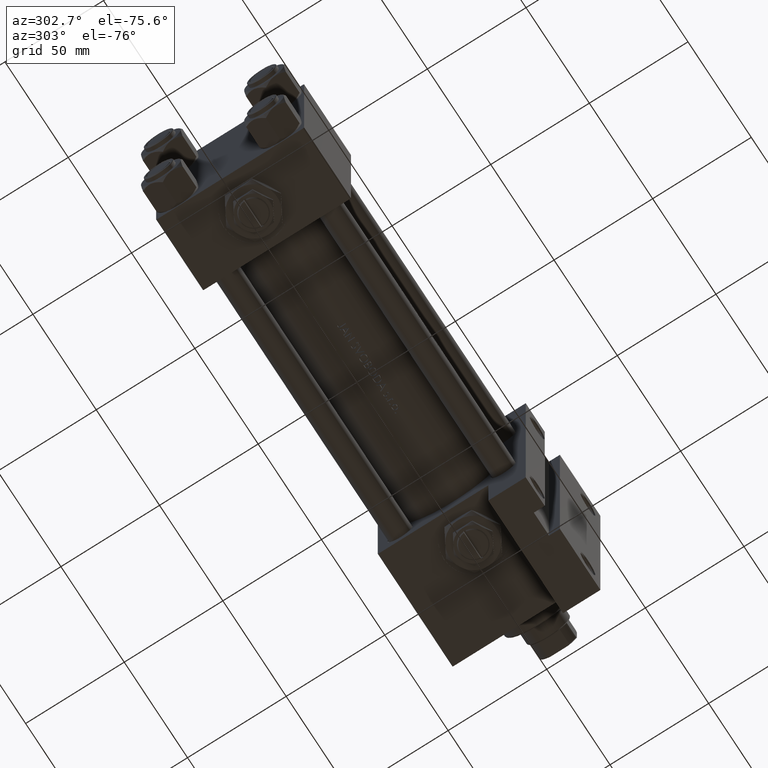
[diagram: clean part render]
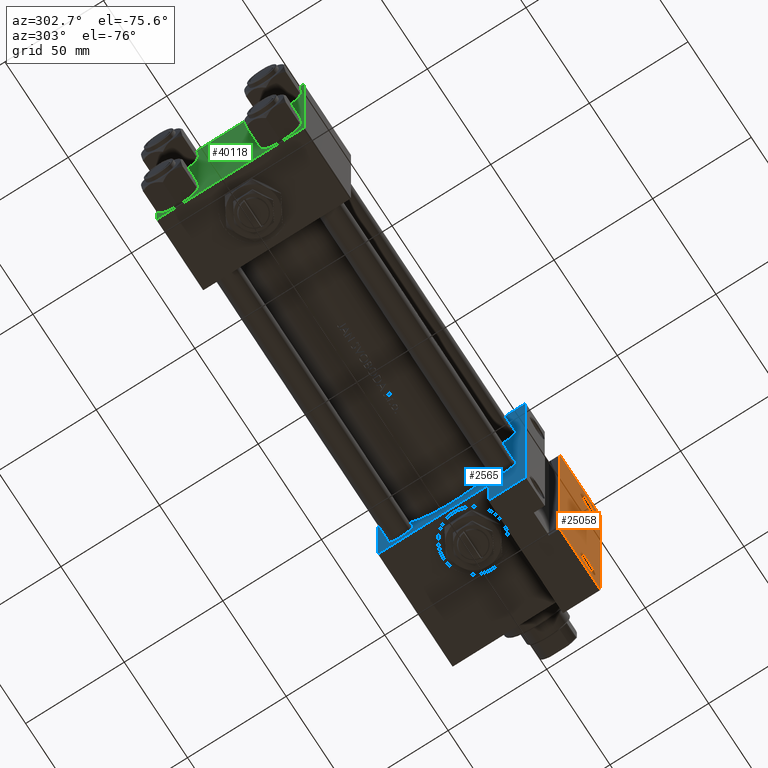
[diagram: same view with three faces highlighted in distinct colors, each labeled with its STEP entity id]
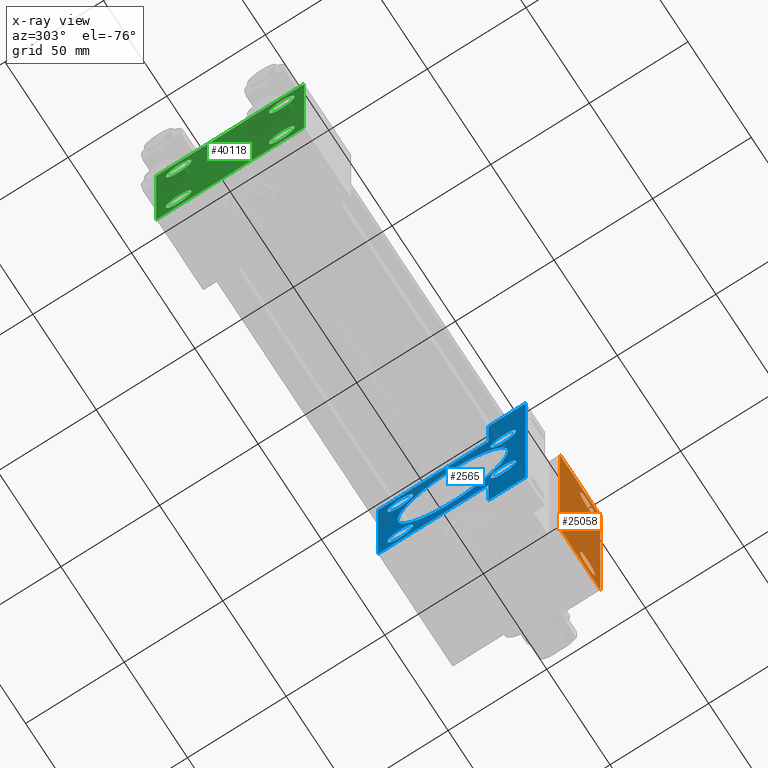
[diagram: x-ray of the same camera — body ghosted, the three highlighted faces saturated]
A machine part, auxiliary view with three faces highlighted in distinct colors.
The next image is the same camera in x-ray (body ghosted, the three faces saturated) — at least one of them is partly hidden behind the body in this view.
Their STEP definitions:

[orange] entity #25058 — the highlighted planar face has unit normal (0, -1, 0).
#278 = LINE ( 'NONE', #46759, #46553 ) ;
#504 = VECTOR ( 'NONE', #23861, 1000.000000000000000 ) ;
#605 = VERTEX_POINT ( 'NONE', #4541 ) ;
#720 = AXIS2_PLACEMENT_3D ( 'NONE', #1343, #44049, #16154 ) ;
#1170 = EDGE_CURVE ( 'NONE', #605, #16847, #38846, .T. ) ;
#1343 = CARTESIAN_POINT ( 'NONE',  ( 223.9999999999999716, 51.00000000000000000, -37.50000000000000000 ) ) ;
#1990 = EDGE_CURVE ( 'NONE', #40437, #18379, #25528, .T. ) ;
#2506 = CARTESIAN_POINT ( 'NONE',  ( 202.0000000000000568, -63.49999999999997158, -37.50000000000000000 ) ) ;
#4541 = CARTESIAN_POINT ( 'NONE',  ( 229.9994999999999266, 51.00000000000000000, -37.50000000000000000 ) ) ;
#4585 = AXIS2_PLACEMENT_3D ( 'NONE', #20412, #23269, #38582 ) ;
#4653 = CARTESIAN_POINT ( 'NONE',  ( 218.0005000000000166, 51.00000000000000000, -37.50000000000000000 ) ) ;
#4867 = CIRCLE ( 'NONE', #16056, 5.999499999999962974 ) ;
#6916 = EDGE_LOOP ( 'NONE', ( #47279, #37692 ) ) ;
#7075 = CARTESIAN_POINT ( 'NONE',  ( 234.0000000000000284, -63.50000000000001421, -37.50000000000000000 ) ) ;
#7153 = CIRCLE ( 'NONE', #720, 5.999499999999962974 ) ;
#7544 = CARTESIAN_POINT ( 'NONE',  ( 202.0000000000000568, 63.49999999999998579, -37.50000000000000000 ) ) ;
#7865 = VECTOR ( 'NONE', #25036, 1000.000000000000000 ) ;
#8537 = CARTESIAN_POINT ( 'NONE',  ( 202.0000000000000568, -63.49999999999997158, -37.50000000000000000 ) ) ;
#8660 = ORIENTED_EDGE ( 'NONE', *, *, #14014, .F. ) ;
#9529 = CARTESIAN_POINT ( 'NONE',  ( 223.9999999999999716, -51.00000000000000000, -37.50000000000000000 ) ) ;
#10968 = VERTEX_POINT ( 'NONE', #31069 ) ;
#13273 = DIRECTION ( 'NONE',  ( -0.000000000000000000, -0.000000000000000000, 1.000000000000000000 ) ) ;
#14014 = EDGE_CURVE ( 'NONE', #46991, #18379, #27634, .T. ) ;
#14170 = VERTEX_POINT ( 'NONE', #17946 ) ;
#14171 = CARTESIAN_POINT ( 'NONE',  ( 175.0000000000000284, -63.50000000000001421, -37.50000000000000000 ) ) ;
#14313 = FACE_OUTER_BOUND ( 'NONE', #35043, .T. ) ;
#14668 = LINE ( 'NONE', #45333, #7865 ) ;
#15862 = CIRCLE ( 'NONE', #49573, 5.999499999999962974 ) ;
#16056 = AXIS2_PLACEMENT_3D ( 'NONE', #26084, #30352, #25333 ) ;
#16154 = DIRECTION ( 'NONE',  ( -1.000000000000000000, 0.000000000000000000, 0.000000000000000000 ) ) ;
#16690 = CARTESIAN_POINT ( 'NONE',  ( 234.0000000000000568, 63.49999999999998579, -37.50000000000000000 ) ) ;
#16847 = VERTEX_POINT ( 'NONE', #4653 ) ;
#17946 = CARTESIAN_POINT ( 'NONE',  ( 229.9994999999999266, -51.00000000000000000, -37.50000000000000000 ) ) ;
#18379 = VERTEX_POINT ( 'NONE', #2506 ) ;
#18886 = EDGE_LOOP ( 'NONE', ( #21191, #20941 ) ) ;
#20412 = CARTESIAN_POINT ( 'NONE',  ( 223.9999999999999716, 51.00000000000000000, -37.50000000000000000 ) ) ;
#20591 = DIRECTION ( 'NONE',  ( -1.000000000000000000, 0.000000000000000000, 0.000000000000000000 ) ) ;
#20941 = ORIENTED_EDGE ( 'NONE', *, *, #21257, .T. ) ;
#21139 = DIRECTION ( 'NONE',  ( -1.000000000000000000, 0.000000000000000000, -0.000000000000000000 ) ) ;
#21191 = ORIENTED_EDGE ( 'NONE', *, *, #37650, .T. ) ;
#21257 = EDGE_CURVE ( 'NONE', #14170, #10968, #15862, .T. ) ;
#21384 = FACE_BOUND ( 'NONE', #6916, .T. ) ;
#23269 = DIRECTION ( 'NONE',  ( -0.000000000000000000, -0.000000000000000000, 1.000000000000000000 ) ) ;
#23861 = DIRECTION ( 'NONE',  ( -0.000000000000000000, -1.000000000000000000, -0.000000000000000000 ) ) ;
#25036 = DIRECTION ( 'NONE',  ( 0.000000000000000000, -1.000000000000000000, 0.000000000000000000 ) ) ;
#25058 = ADVANCED_FACE ( 'NONE', ( #14313, #43998, #21384 ), #25671, .T. ) ;
#25333 = DIRECTION ( 'NONE',  ( -1.000000000000000000, 0.000000000000000000, 0.000000000000000000 ) ) ;
#25528 = LINE ( 'NONE', #14171, #30432 ) ;
#25671 = PLANE ( 'NONE',  #29508 ) ;
#26084 = CARTESIAN_POINT ( 'NONE',  ( 223.9999999999999716, -51.00000000000000000, -37.50000000000000000 ) ) ;
#26365 = EDGE_CURVE ( 'NONE', #42324, #40437, #14668, .T. ) ;
#27397 = ORIENTED_EDGE ( 'NONE', *, *, #34234, .T. ) ;
#27634 = LINE ( 'NONE', #8537, #504 ) ;
#29508 = AXIS2_PLACEMENT_3D ( 'NONE', #40982, #37218, #21139 ) ;
#30352 = DIRECTION ( 'NONE',  ( -0.000000000000000000, -0.000000000000000000, 1.000000000000000000 ) ) ;
#30432 = VECTOR ( 'NONE', #40837, 1000.000000000000000 ) ;
#31069 = CARTESIAN_POINT ( 'NONE',  ( 218.0005000000000166, -51.00000000000000000, -37.50000000000000000 ) ) ;
#34234 = EDGE_CURVE ( 'NONE', #46991, #42324, #278, .T. ) ;
#34715 = DIRECTION ( 'NONE',  ( 1.000000000000000000, 0.000000000000000000, 0.000000000000000000 ) ) ;
#35043 = EDGE_LOOP ( 'NONE', ( #8660, #27397, #43450, #46465 ) ) ;
#35127 = EDGE_CURVE ( 'NONE', #16847, #605, #7153, .T. ) ;
#37218 = DIRECTION ( 'NONE',  ( 0.000000000000000000, 0.000000000000000000, -1.000000000000000000 ) ) ;
#37650 = EDGE_CURVE ( 'NONE', #10968, #14170, #4867, .T. ) ;
#37692 = ORIENTED_EDGE ( 'NONE', *, *, #1170, .T. ) ;
#38582 = DIRECTION ( 'NONE',  ( -1.000000000000000000, 0.000000000000000000, 0.000000000000000000 ) ) ;
#38846 = CIRCLE ( 'NONE', #4585, 5.999499999999962974 ) ;
#40437 = VERTEX_POINT ( 'NONE', #7075 ) ;
#40837 = DIRECTION ( 'NONE',  ( -1.000000000000000000, -0.000000000000000000, -0.000000000000000000 ) ) ;
#40982 = CARTESIAN_POINT ( 'NONE',  ( 234.0000000000000000, 37.50000000000000000, -37.50000000000000000 ) ) ;
#42324 = VERTEX_POINT ( 'NONE', #16690 ) ;
#43450 = ORIENTED_EDGE ( 'NONE', *, *, #26365, .T. ) ;
#43998 = FACE_BOUND ( 'NONE', #18886, .T. ) ;
#44049 = DIRECTION ( 'NONE',  ( -0.000000000000000000, -0.000000000000000000, 1.000000000000000000 ) ) ;
#45333 = CARTESIAN_POINT ( 'NONE',  ( 234.0000000000000000, 37.50000000000000000, -37.50000000000000000 ) ) ;
#46465 = ORIENTED_EDGE ( 'NONE', *, *, #1990, .T. ) ;
#46553 = VECTOR ( 'NONE', #34715, 1000.000000000000000 ) ;
#46759 = CARTESIAN_POINT ( 'NONE',  ( 175.0000000000000568, 63.49999999999998579, -37.50000000000000000 ) ) ;
#46991 = VERTEX_POINT ( 'NONE', #7544 ) ;
#47279 = ORIENTED_EDGE ( 'NONE', *, *, #35127, .T. ) ;
#49573 = AXIS2_PLACEMENT_3D ( 'NONE', #9529, #13273, #20591 ) ;

[blue] entity #2565 — the highlighted planar face has unit normal (-1, 0, 0).
#116 = DIRECTION ( 'NONE',  ( 0.000000000000000000, 0.000000000000000000, -1.000000000000000000 ) ) ;
#177 = FACE_BOUND ( 'NONE', #17353, .T. ) ;
#397 = CIRCLE ( 'NONE', #11602, 6.500000000000008882 ) ;
#422 = FACE_BOUND ( 'NONE', #31975, .T. ) ;
#852 = VECTOR ( 'NONE', #15344, 1000.000000000000000 ) ;
#1575 = CARTESIAN_POINT ( 'NONE',  ( 175.0000000000000284, -63.50000000000001421, -18.50000000000000000 ) ) ;
#1961 = LINE ( 'NONE', #35897, #27462 ) ;
#2013 = DIRECTION ( 'NONE',  ( 0.000000000000000000, -1.000000000000000000, 0.000000000000000000 ) ) ;
#2087 = EDGE_LOOP ( 'NONE', ( #31159, #40670 ) ) ;
#2565 = ADVANCED_FACE ( 'NONE', ( #422, #177, #16234, #34369, #41899, #38630 ), #46900, .T. ) ;
#2832 = VERTEX_POINT ( 'NONE', #11158 ) ;
#3239 = CIRCLE ( 'NONE', #8869, 6.500000000000008882 ) ;
#3356 = EDGE_LOOP ( 'NONE', ( #7461, #7801 ) ) ;
#3557 = DIRECTION ( 'NONE',  ( 1.000000000000000000, 0.000000000000000000, -0.000000000000000000 ) ) ;
#4748 = LINE ( 'NONE', #35403, #6980 ) ;
#5264 = VERTEX_POINT ( 'NONE', #15283 ) ;
#5296 = EDGE_CURVE ( 'NONE', #35164, #41140, #3239, .T. ) ;
#6263 = EDGE_CURVE ( 'NONE', #22368, #39603, #34231, .T. ) ;
#6369 = CARTESIAN_POINT ( 'NONE',  ( 175.0000000000000284, -26.14999999999999147, 19.65000000000000213 ) ) ;
#6577 = CARTESIAN_POINT ( 'NONE',  ( 175.0000000000000284, -37.50000000000000000, -18.50000000000000000 ) ) ;
#6980 = VECTOR ( 'NONE', #23345, 1000.000000000000000 ) ;
#7273 = DIRECTION ( 'NONE',  ( 0.000000000000000000, 0.000000000000000000, 1.000000000000000000 ) ) ;
#7284 = VERTEX_POINT ( 'NONE', #12962 ) ;
#7461 = ORIENTED_EDGE ( 'NONE', *, *, #19219, .T. ) ;
#7801 = ORIENTED_EDGE ( 'NONE', *, *, #9964, .T. ) ;
#7889 = DIRECTION ( 'NONE',  ( 0.000000000000000000, 0.000000000000000000, 1.000000000000000000 ) ) ;
#7973 = ORIENTED_EDGE ( 'NONE', *, *, #45620, .T. ) ;
#8869 = AXIS2_PLACEMENT_3D ( 'NONE', #46193, #27122, #31412 ) ;
#9000 = CARTESIAN_POINT ( 'NONE',  ( 175.0000000000000284, 26.14999999999999858, -32.65000000000001279 ) ) ;
#9305 = DIRECTION ( 'NONE',  ( 1.000000000000000000, 0.000000000000000000, 0.000000000000000000 ) ) ;
#9550 = CARTESIAN_POINT ( 'NONE',  ( 175.0000000000000284, 6.123233995736772199E-17, -0.5000000000000004441 ) ) ;
#9964 = EDGE_CURVE ( 'NONE', #41981, #45272, #397, .T. ) ;
#10034 = CARTESIAN_POINT ( 'NONE',  ( 175.0000000000000284, -26.14999999999999147, -19.65000000000000213 ) ) ;
#10213 = CARTESIAN_POINT ( 'NONE',  ( 175.0000000000000284, -63.50000000000001421, -37.50000000000000000 ) ) ;
#10659 = CARTESIAN_POINT ( 'NONE',  ( 175.0000000000000284, -26.14999999999999147, -26.15000000000000924 ) ) ;
#11042 = VECTOR ( 'NONE', #37724, 1000.000000000000114 ) ;
#11158 = CARTESIAN_POINT ( 'NONE',  ( 175.0000000000000284, 37.50000000000000000, 37.00000000000002132 ) ) ;
#11295 = EDGE_LOOP ( 'NONE', ( #35841, #38595, #28883, #26398, #48678, #49424, #33712, #39046, #42853, #20575 ) ) ;
#11602 = AXIS2_PLACEMENT_3D ( 'NONE', #30635, #15008, #7273 ) ;
#11803 = VERTEX_POINT ( 'NONE', #45926 ) ;
#12067 = DIRECTION ( 'NONE',  ( 1.000000000000000000, 0.000000000000000000, -0.000000000000000000 ) ) ;
#12244 = CARTESIAN_POINT ( 'NONE',  ( 175.0000000000000284, -37.25000000000000000, 37.25000000000000000 ) ) ;
#12581 = AXIS2_PLACEMENT_3D ( 'NONE', #26881, #46712, #23111 ) ;
#12962 = CARTESIAN_POINT ( 'NONE',  ( 175.0000000000000284, -37.50000000000000000, 37.00000000000000711 ) ) ;
#13533 = LINE ( 'NONE', #47966, #25676 ) ;
#13715 = CIRCLE ( 'NONE', #32228, 6.500000000000008882 ) ;
#15008 = DIRECTION ( 'NONE',  ( 1.000000000000000000, 0.000000000000000000, -0.000000000000000000 ) ) ;
#15134 = CARTESIAN_POINT ( 'NONE',  ( 175.0000000000000284, 26.14999999999999858, -19.64999999999999503 ) ) ;
#15237 = DIRECTION ( 'NONE',  ( -1.000000000000000000, -0.000000000000000000, 0.000000000000000000 ) ) ;
#15283 = CARTESIAN_POINT ( 'NONE',  ( 175.0000000000000284, 3.490243377569956456E-15, -28.50000000000000000 ) ) ;
#15344 = DIRECTION ( 'NONE',  ( 0.000000000000000000, -1.000000000000000000, -1.850371707708594316E-16 ) ) ;
#16168 = AXIS2_PLACEMENT_3D ( 'NONE', #35468, #12067, #24163 ) ;
#16234 = FACE_BOUND ( 'NONE', #3356, .T. ) ;
#16660 = AXIS2_PLACEMENT_3D ( 'NONE', #35302, #30791, #116 ) ;
#17353 = EDGE_LOOP ( 'NONE', ( #7973, #17601 ) ) ;
#17601 = ORIENTED_EDGE ( 'NONE', *, *, #22763, .T. ) ;
#17766 = LINE ( 'NONE', #28608, #25563 ) ;
#18175 = DIRECTION ( 'NONE',  ( 1.000000000000000000, 0.000000000000000000, -0.000000000000000000 ) ) ;
#18601 = EDGE_CURVE ( 'NONE', #42691, #25097, #4748, .T. ) ;
#18784 = VERTEX_POINT ( 'NONE', #29348 ) ;
#19127 = CIRCLE ( 'NONE', #32020, 6.500000000000008882 ) ;
#19219 = EDGE_CURVE ( 'NONE', #45272, #41981, #32684, .T. ) ;
#19261 = ORIENTED_EDGE ( 'NONE', *, *, #49023, .T. ) ;
#19967 = AXIS2_PLACEMENT_3D ( 'NONE', #23564, #15237, #30613 ) ;
#19974 = LINE ( 'NONE', #36058, #42615 ) ;
#20575 = ORIENTED_EDGE ( 'NONE', *, *, #41873, .T. ) ;
#20621 = AXIS2_PLACEMENT_3D ( 'NONE', #41070, #18175, #48582 ) ;
#20809 = DIRECTION ( 'NONE',  ( 0.000000000000000000, 0.000000000000000000, -1.000000000000000000 ) ) ;
#21924 = VERTEX_POINT ( 'NONE', #44271 ) ;
#22368 = VERTEX_POINT ( 'NONE', #24632 ) ;
#22763 = EDGE_CURVE ( 'NONE', #43063, #21924, #27828, .T. ) ;
#23111 = DIRECTION ( 'NONE',  ( 0.000000000000000000, 0.000000000000000000, 1.000000000000000000 ) ) ;
#23268 = VERTEX_POINT ( 'NONE', #10034 ) ;
#23345 = DIRECTION ( 'NONE',  ( 0.000000000000000000, 1.000000000000000000, 0.000000000000000000 ) ) ;
#23564 = CARTESIAN_POINT ( 'NONE',  ( 175.0000000000000284, 0.000000000000000000, 0.000000000000000000 ) ) ;
#23879 = EDGE_CURVE ( 'NONE', #22368, #2832, #41212, .T. ) ;
#24073 = EDGE_CURVE ( 'NONE', #23268, #18784, #39107, .T. ) ;
#24080 = LINE ( 'NONE', #12244, #11042 ) ;
#24163 = DIRECTION ( 'NONE',  ( 0.000000000000000000, 0.000000000000000000, 1.000000000000000000 ) ) ;
#24505 = DIRECTION ( 'NONE',  ( 0.000000000000000000, 0.000000000000000000, 1.000000000000000000 ) ) ;
#24632 = CARTESIAN_POINT ( 'NONE',  ( 175.0000000000000284, 37.00000000000002842, 37.49999999999999289 ) ) ;
#25097 = VERTEX_POINT ( 'NONE', #6577 ) ;
#25498 = EDGE_CURVE ( 'NONE', #32505, #5264, #36743, .T. ) ;
#25563 = VECTOR ( 'NONE', #20809, 1000.000000000000000 ) ;
#25676 = VECTOR ( 'NONE', #39944, 1000.000000000000000 ) ;
#26237 = EDGE_CURVE ( 'NONE', #42691, #39245, #44203, .T. ) ;
#26398 = ORIENTED_EDGE ( 'NONE', *, *, #32103, .T. ) ;
#26673 = AXIS2_PLACEMENT_3D ( 'NONE', #9550, #9305, #40199 ) ;
#26881 = CARTESIAN_POINT ( 'NONE',  ( 175.0000000000000284, -26.14999999999999147, -26.15000000000000924 ) ) ;
#27122 = DIRECTION ( 'NONE',  ( 1.000000000000000000, 0.000000000000000000, -0.000000000000000000 ) ) ;
#27462 = VECTOR ( 'NONE', #47441, 1000.000000000000000 ) ;
#27654 = EDGE_CURVE ( 'NONE', #18784, #23268, #19127, .T. ) ;
#27828 = CIRCLE ( 'NONE', #39026, 6.499999999999995559 ) ;
#28261 = CIRCLE ( 'NONE', #16168, 6.499999999999995559 ) ;
#28608 = CARTESIAN_POINT ( 'NONE',  ( 175.0000000000000284, 37.50000000000000000, 37.49999999999999289 ) ) ;
#28883 = ORIENTED_EDGE ( 'NONE', *, *, #29383, .T. ) ;
#28921 = CARTESIAN_POINT ( 'NONE',  ( 175.0000000000000284, 37.50000000000000000, -37.50000000000000000 ) ) ;
#29348 = CARTESIAN_POINT ( 'NONE',  ( 175.0000000000000284, -26.14999999999999147, -32.65000000000002700 ) ) ;
#29383 = EDGE_CURVE ( 'NONE', #2832, #11803, #17766, .T. ) ;
#29391 = DIRECTION ( 'NONE',  ( 0.000000000000000000, 0.000000000000000000, -1.000000000000000000 ) ) ;
#29544 = VECTOR ( 'NONE', #29391, 1000.000000000000000 ) ;
#29579 = CARTESIAN_POINT ( 'NONE',  ( 175.0000000000000284, -26.14999999999999147, 32.65000000000001990 ) ) ;
#30451 = DIRECTION ( 'NONE',  ( 0.000000000000000000, 0.000000000000000000, 1.000000000000000000 ) ) ;
#30613 = DIRECTION ( 'NONE',  ( 0.000000000000000000, 0.000000000000000000, 1.000000000000000000 ) ) ;
#30635 = CARTESIAN_POINT ( 'NONE',  ( 175.0000000000000284, 26.14999999999999858, -26.15000000000000213 ) ) ;
#30791 = DIRECTION ( 'NONE',  ( 1.000000000000000000, 0.000000000000000000, 0.000000000000000000 ) ) ;
#31159 = ORIENTED_EDGE ( 'NONE', *, *, #24073, .T. ) ;
#31412 = DIRECTION ( 'NONE',  ( 0.000000000000000000, 0.000000000000000000, 1.000000000000000000 ) ) ;
#31975 = EDGE_LOOP ( 'NONE', ( #47623, #46121 ) ) ;
#32020 = AXIS2_PLACEMENT_3D ( 'NONE', #10659, #42299, #7889 ) ;
#32103 = EDGE_CURVE ( 'NONE', #11803, #47482, #13533, .T. ) ;
#32228 = AXIS2_PLACEMENT_3D ( 'NONE', #37974, #3557, #30451 ) ;
#32505 = VERTEX_POINT ( 'NONE', #33110 ) ;
#32684 = CIRCLE ( 'NONE', #20621, 6.500000000000008882 ) ;
#33110 = CARTESIAN_POINT ( 'NONE',  ( 175.0000000000000284, 6.123233995736772199E-17, 27.50000000000000000 ) ) ;
#33170 = CARTESIAN_POINT ( 'NONE',  ( 175.0000000000000284, 26.14999999999999858, 19.65000000000000568 ) ) ;
#33502 = ORIENTED_EDGE ( 'NONE', *, *, #25498, .T. ) ;
#33622 = EDGE_CURVE ( 'NONE', #40349, #39245, #36451, .T. ) ;
#33645 = EDGE_LOOP ( 'NONE', ( #33502, #19261 ) ) ;
#33712 = ORIENTED_EDGE ( 'NONE', *, *, #26237, .F. ) ;
#34231 = LINE ( 'NONE', #45518, #852 ) ;
#34369 = FACE_BOUND ( 'NONE', #2087, .T. ) ;
#35164 = VERTEX_POINT ( 'NONE', #6369 ) ;
#35302 = CARTESIAN_POINT ( 'NONE',  ( 175.0000000000000284, 6.123233995736772199E-17, -0.5000000000000004441 ) ) ;
#35403 = CARTESIAN_POINT ( 'NONE',  ( 175.0000000000000284, -63.50000000000001421, -18.50000000000000000 ) ) ;
#35468 = CARTESIAN_POINT ( 'NONE',  ( 175.0000000000000284, 26.14999999999999858, 26.15000000000000213 ) ) ;
#35573 = DIRECTION ( 'NONE',  ( 0.000000000000000000, 0.000000000000000000, -1.000000000000000000 ) ) ;
#35841 = ORIENTED_EDGE ( 'NONE', *, *, #6263, .F. ) ;
#35897 = CARTESIAN_POINT ( 'NONE',  ( 175.0000000000000284, -37.50000000000000000, 37.49999999999997868 ) ) ;
#36058 = CARTESIAN_POINT ( 'NONE',  ( 175.0000000000000568, 63.49999999999998579, -18.50000000000000000 ) ) ;
#36451 = LINE ( 'NONE', #28921, #40107 ) ;
#36544 = CARTESIAN_POINT ( 'NONE',  ( 175.0000000000000284, 26.14999999999999858, 26.15000000000000213 ) ) ;
#36743 = CIRCLE ( 'NONE', #16660, 28.00000000000000000 ) ;
#37496 = VECTOR ( 'NONE', #41454, 1000.000000000000114 ) ;
#37724 = DIRECTION ( 'NONE',  ( -0.000000000000000000, 0.7071067811865474617, 0.7071067811865474617 ) ) ;
#37938 = CARTESIAN_POINT ( 'NONE',  ( 175.0000000000000284, 37.25000000000000711, 37.25000000000000711 ) ) ;
#37974 = CARTESIAN_POINT ( 'NONE',  ( 175.0000000000000284, -26.14999999999999147, 26.15000000000000924 ) ) ;
#38595 = ORIENTED_EDGE ( 'NONE', *, *, #23879, .T. ) ;
#38630 = FACE_OUTER_BOUND ( 'NONE', #11295, .T. ) ;
#39026 = AXIS2_PLACEMENT_3D ( 'NONE', #36544, #43336, #24505 ) ;
#39046 = ORIENTED_EDGE ( 'NONE', *, *, #18601, .T. ) ;
#39107 = CIRCLE ( 'NONE', #12581, 6.500000000000008882 ) ;
#39245 = VERTEX_POINT ( 'NONE', #10213 ) ;
#39603 = VERTEX_POINT ( 'NONE', #41796 ) ;
#39829 = EDGE_CURVE ( 'NONE', #41140, #35164, #13715, .T. ) ;
#39944 = DIRECTION ( 'NONE',  ( 1.067522139062651066E-15, 1.000000000000000000, -0.000000000000000000 ) ) ;
#40107 = VECTOR ( 'NONE', #2013, 1000.000000000000000 ) ;
#40199 = DIRECTION ( 'NONE',  ( 0.000000000000000000, 0.000000000000000000, -1.000000000000000000 ) ) ;
#40349 = VERTEX_POINT ( 'NONE', #41729 ) ;
#40670 = ORIENTED_EDGE ( 'NONE', *, *, #27654, .T. ) ;
#40929 = CARTESIAN_POINT ( 'NONE',  ( 175.0000000000000284, -63.50000000000001421, -18.50000000000000000 ) ) ;
#41070 = CARTESIAN_POINT ( 'NONE',  ( 175.0000000000000284, 26.14999999999999858, -26.15000000000000213 ) ) ;
#41140 = VERTEX_POINT ( 'NONE', #29579 ) ;
#41212 = LINE ( 'NONE', #37938, #37496 ) ;
#41454 = DIRECTION ( 'NONE',  ( 0.000000000000000000, 0.7071067811865474617, -0.7071067811865474617 ) ) ;
#41729 = CARTESIAN_POINT ( 'NONE',  ( 175.0000000000000568, 63.49999999999998579, -37.50000000000000000 ) ) ;
#41796 = CARTESIAN_POINT ( 'NONE',  ( 175.0000000000000284, -37.00000000000002842, 37.49999999999997868 ) ) ;
#41873 = EDGE_CURVE ( 'NONE', #7284, #39603, #24080, .T. ) ;
#41899 = FACE_BOUND ( 'NONE', #33645, .T. ) ;
#41981 = VERTEX_POINT ( 'NONE', #9000 ) ;
#42299 = DIRECTION ( 'NONE',  ( 1.000000000000000000, 0.000000000000000000, -0.000000000000000000 ) ) ;
#42383 = CARTESIAN_POINT ( 'NONE',  ( 175.0000000000000568, 63.49999999999998579, -18.50000000000000000 ) ) ;
#42615 = VECTOR ( 'NONE', #35573, 1000.000000000000000 ) ;
#42691 = VERTEX_POINT ( 'NONE', #1575 ) ;
#42853 = ORIENTED_EDGE ( 'NONE', *, *, #46284, .F. ) ;
#43063 = VERTEX_POINT ( 'NONE', #33170 ) ;
#43336 = DIRECTION ( 'NONE',  ( 1.000000000000000000, 0.000000000000000000, -0.000000000000000000 ) ) ;
#44036 = EDGE_CURVE ( 'NONE', #47482, #40349, #19974, .T. ) ;
#44203 = LINE ( 'NONE', #40929, #29544 ) ;
#44271 = CARTESIAN_POINT ( 'NONE',  ( 175.0000000000000284, 26.14999999999999858, 32.65000000000000568 ) ) ;
#44388 = CIRCLE ( 'NONE', #26673, 28.00000000000000000 ) ;
#45272 = VERTEX_POINT ( 'NONE', #15134 ) ;
#45518 = CARTESIAN_POINT ( 'NONE',  ( 175.0000000000000284, 37.50000000000000000, 37.49999999999999289 ) ) ;
#45620 = EDGE_CURVE ( 'NONE', #21924, #43063, #28261, .T. ) ;
#45926 = CARTESIAN_POINT ( 'NONE',  ( 175.0000000000000284, 37.50000000000000000, -18.50000000000000355 ) ) ;
#46121 = ORIENTED_EDGE ( 'NONE', *, *, #5296, .T. ) ;
#46193 = CARTESIAN_POINT ( 'NONE',  ( 175.0000000000000284, -26.14999999999999147, 26.15000000000000924 ) ) ;
#46284 = EDGE_CURVE ( 'NONE', #7284, #25097, #1961, .T. ) ;
#46712 = DIRECTION ( 'NONE',  ( 1.000000000000000000, 0.000000000000000000, -0.000000000000000000 ) ) ;
#46900 = PLANE ( 'NONE',  #19967 ) ;
#47441 = DIRECTION ( 'NONE',  ( 0.000000000000000000, -9.251858538542972814E-17, -1.000000000000000000 ) ) ;
#47482 = VERTEX_POINT ( 'NONE', #42383 ) ;
#47623 = ORIENTED_EDGE ( 'NONE', *, *, #39829, .T. ) ;
#47966 = CARTESIAN_POINT ( 'NONE',  ( 175.0000000000000568, 63.49999999999998579, -18.50000000000000000 ) ) ;
#48582 = DIRECTION ( 'NONE',  ( 0.000000000000000000, 0.000000000000000000, 1.000000000000000000 ) ) ;
#48678 = ORIENTED_EDGE ( 'NONE', *, *, #44036, .T. ) ;
#49023 = EDGE_CURVE ( 'NONE', #5264, #32505, #44388, .T. ) ;
#49424 = ORIENTED_EDGE ( 'NONE', *, *, #33622, .T. ) ;

[green] entity #40118 — the highlighted planar face has unit normal (-1, 0, -0).
#133 = EDGE_LOOP ( 'NONE', ( #14227, #3769 ) ) ;
#1105 = CARTESIAN_POINT ( 'NONE',  ( 0.000000000000000000, -26.14999999999999147, -26.15000000000000924 ) ) ;
#1553 = CIRCLE ( 'NONE', #7985, 6.500000000000023093 ) ;
#2903 = DIRECTION ( 'NONE',  ( 0.000000000000000000, 0.000000000000000000, 1.000000000000000000 ) ) ;
#3010 = DIRECTION ( 'NONE',  ( -0.000000000000000000, 0.000000000000000000, 1.000000000000000000 ) ) ;
#3244 = LINE ( 'NONE', #14761, #35429 ) ;
#3769 = ORIENTED_EDGE ( 'NONE', *, *, #9227, .T. ) ;
#3985 = DIRECTION ( 'NONE',  ( -0.000000000000000000, 0.7071067811865474617, 0.7071067811865474617 ) ) ;
#4611 = DIRECTION ( 'NONE',  ( 0.000000000000000000, 0.000000000000000000, 1.000000000000000000 ) ) ;
#4689 = DIRECTION ( 'NONE',  ( 0.000000000000000000, 0.000000000000000000, -1.000000000000000000 ) ) ;
#4877 = DIRECTION ( 'NONE',  ( 1.000000000000000000, -0.000000000000000000, 0.000000000000000000 ) ) ;
#4932 = CARTESIAN_POINT ( 'NONE',  ( 0.000000000000000000, -26.14999999999999147, 26.15000000000000924 ) ) ;
#5151 = VERTEX_POINT ( 'NONE', #25900 ) ;
#5178 = DIRECTION ( 'NONE',  ( 0.000000000000000000, 0.000000000000000000, 1.000000000000000000 ) ) ;
#5279 = EDGE_CURVE ( 'NONE', #47856, #47811, #38421, .T. ) ;
#5977 = EDGE_CURVE ( 'NONE', #26714, #5151, #32265, .T. ) ;
#6218 = CARTESIAN_POINT ( 'NONE',  ( 0.000000000000000000, 26.14999999999999858, -26.15000000000000213 ) ) ;
#6785 = FACE_OUTER_BOUND ( 'NONE', #25578, .T. ) ;
#7258 = DIRECTION ( 'NONE',  ( 0.000000000000000000, -0.7071067811865524577, 0.7071067811865426878 ) ) ;
#7325 = VECTOR ( 'NONE', #28274, 1000.000000000000114 ) ;
#7823 = ORIENTED_EDGE ( 'NONE', *, *, #45153, .T. ) ;
#7985 = AXIS2_PLACEMENT_3D ( 'NONE', #33573, #14437, #29816 ) ;
#8053 = EDGE_CURVE ( 'NONE', #47811, #10908, #37405, .T. ) ;
#8386 = EDGE_CURVE ( 'NONE', #26714, #32281, #13151, .T. ) ;
#8510 = LINE ( 'NONE', #38393, #14099 ) ;
#8806 = CARTESIAN_POINT ( 'NONE',  ( 0.000000000000000000, -26.14999999999999147, 32.65000000000003411 ) ) ;
#9227 = EDGE_CURVE ( 'NONE', #24362, #28282, #23659, .T. ) ;
#10089 = CARTESIAN_POINT ( 'NONE',  ( 0.000000000000000000, 37.24999999999998579, -37.24999999999998579 ) ) ;
#10230 = EDGE_LOOP ( 'NONE', ( #41836, #18471 ) ) ;
#10534 = FACE_BOUND ( 'NONE', #26226, .T. ) ;
#10908 = VERTEX_POINT ( 'NONE', #15207 ) ;
#11565 = CARTESIAN_POINT ( 'NONE',  ( 0.000000000000000000, -37.50000000000000711, 36.99999999999999289 ) ) ;
#11578 = DIRECTION ( 'NONE',  ( 0.000000000000000000, 0.000000000000000000, 1.000000000000000000 ) ) ;
#11734 = LINE ( 'NONE', #10089, #38561 ) ;
#12107 = AXIS2_PLACEMENT_3D ( 'NONE', #14534, #41436, #3010 ) ;
#12557 = ORIENTED_EDGE ( 'NONE', *, *, #17669, .T. ) ;
#12852 = VECTOR ( 'NONE', #46948, 1000.000000000000000 ) ;
#13151 = LINE ( 'NONE', #24750, #7325 ) ;
#13593 = ORIENTED_EDGE ( 'NONE', *, *, #5279, .T. ) ;
#14006 = CARTESIAN_POINT ( 'NONE',  ( 0.000000000000000000, 26.14999999999999858, -32.65000000000001990 ) ) ;
#14099 = VECTOR ( 'NONE', #3985, 1000.000000000000114 ) ;
#14175 = DIRECTION ( 'NONE',  ( 1.000000000000000000, -0.000000000000000000, 0.000000000000000000 ) ) ;
#14227 = ORIENTED_EDGE ( 'NONE', *, *, #14237, .T. ) ;
#14237 = EDGE_CURVE ( 'NONE', #28282, #24362, #28651, .T. ) ;
#14437 = DIRECTION ( 'NONE',  ( 1.000000000000000000, -0.000000000000000000, 0.000000000000000000 ) ) ;
#14534 = CARTESIAN_POINT ( 'NONE',  ( 0.000000000000000000, 0.000000000000000000, 0.000000000000000000 ) ) ;
#14761 = CARTESIAN_POINT ( 'NONE',  ( 0.000000000000000000, -37.50000000000000711, 37.49999999999999289 ) ) ;
#15207 = CARTESIAN_POINT ( 'NONE',  ( 0.000000000000000000, -37.50000000000000000, -37.00000000000003553 ) ) ;
#15312 = VECTOR ( 'NONE', #7258, 1000.000000000000000 ) ;
#15398 = DIRECTION ( 'NONE',  ( 1.000000000000000000, -0.000000000000000000, 0.000000000000000000 ) ) ;
#15475 = CARTESIAN_POINT ( 'NONE',  ( 0.000000000000000000, -26.14999999999999147, -32.65000000000002700 ) ) ;
#15917 = VERTEX_POINT ( 'NONE', #38743 ) ;
#16166 = CARTESIAN_POINT ( 'NONE',  ( 0.000000000000000000, 26.14999999999999858, 32.65000000000002700 ) ) ;
#16240 = VERTEX_POINT ( 'NONE', #46721 ) ;
#17385 = AXIS2_PLACEMENT_3D ( 'NONE', #6218, #40137, #17751 ) ;
#17456 = CARTESIAN_POINT ( 'NONE',  ( 0.000000000000000000, -26.14999999999999147, -19.64999999999999503 ) ) ;
#17531 = ORIENTED_EDGE ( 'NONE', *, *, #5977, .F. ) ;
#17669 = EDGE_CURVE ( 'NONE', #33324, #5151, #8510, .T. ) ;
#17751 = DIRECTION ( 'NONE',  ( 0.000000000000000000, 0.000000000000000000, 1.000000000000000000 ) ) ;
#18460 = ORIENTED_EDGE ( 'NONE', *, *, #33647, .T. ) ;
#18471 = ORIENTED_EDGE ( 'NONE', *, *, #45303, .T. ) ;
#18691 = CARTESIAN_POINT ( 'NONE',  ( 0.000000000000000000, 26.14999999999999858, -26.15000000000000213 ) ) ;
#19391 = AXIS2_PLACEMENT_3D ( 'NONE', #39276, #4877, #4611 ) ;
#19805 = VERTEX_POINT ( 'NONE', #49407 ) ;
#21676 = VECTOR ( 'NONE', #4689, 1000.000000000000000 ) ;
#22600 = FACE_BOUND ( 'NONE', #10230, .T. ) ;
#23446 = EDGE_CURVE ( 'NONE', #47961, #19805, #33486, .T. ) ;
#23659 = CIRCLE ( 'NONE', #40498, 6.500000000000015987 ) ;
#23734 = CARTESIAN_POINT ( 'NONE',  ( 0.000000000000000000, -26.14999999999999147, 19.64999999999999147 ) ) ;
#23977 = DIRECTION ( 'NONE',  ( 0.000000000000000000, -1.000000000000000000, -9.251858538542971581E-17 ) ) ;
#24362 = VERTEX_POINT ( 'NONE', #15475 ) ;
#24750 = CARTESIAN_POINT ( 'NONE',  ( 0.000000000000000000, 37.24999999999999289, 37.24999999999999289 ) ) ;
#25437 = DIRECTION ( 'NONE',  ( -0.000000000000000000, -0.7071067811865474617, -0.7071067811865474617 ) ) ;
#25578 = EDGE_LOOP ( 'NONE', ( #18460, #44967, #13593, #28989, #44184, #12557, #17531, #38570 ) ) ;
#25810 = CARTESIAN_POINT ( 'NONE',  ( 0.000000000000000000, -26.14999999999999147, 26.15000000000000924 ) ) ;
#25900 = CARTESIAN_POINT ( 'NONE',  ( 0.000000000000000000, -37.00000000000000711, 37.49999999999999289 ) ) ;
#26226 = EDGE_LOOP ( 'NONE', ( #7823, #26389 ) ) ;
#26389 = ORIENTED_EDGE ( 'NONE', *, *, #41153, .T. ) ;
#26394 = AXIS2_PLACEMENT_3D ( 'NONE', #18691, #14175, #2903 ) ;
#26657 = CARTESIAN_POINT ( 'NONE',  ( 0.000000000000000000, -37.00000000000002132, -37.50000000000000711 ) ) ;
#26714 = VERTEX_POINT ( 'NONE', #45749 ) ;
#26991 = DIRECTION ( 'NONE',  ( 0.000000000000000000, 0.000000000000000000, 1.000000000000000000 ) ) ;
#27168 = CIRCLE ( 'NONE', #26394, 6.500000000000015987 ) ;
#28274 = DIRECTION ( 'NONE',  ( 0.000000000000000000, 0.7071067811865474617, -0.7071067811865474617 ) ) ;
#28282 = VERTEX_POINT ( 'NONE', #17456 ) ;
#28651 = CIRCLE ( 'NONE', #43880, 6.500000000000015987 ) ;
#28989 = ORIENTED_EDGE ( 'NONE', *, *, #8053, .T. ) ;
#29162 = FACE_BOUND ( 'NONE', #133, .T. ) ;
#29721 = VECTOR ( 'NONE', #23977, 1000.000000000000000 ) ;
#29816 = DIRECTION ( 'NONE',  ( 0.000000000000000000, 0.000000000000000000, 1.000000000000000000 ) ) ;
#30140 = EDGE_LOOP ( 'NONE', ( #47470, #43352 ) ) ;
#30546 = EDGE_CURVE ( 'NONE', #19805, #47961, #27168, .T. ) ;
#31519 = EDGE_CURVE ( 'NONE', #35876, #15917, #1553, .T. ) ;
#31656 = CARTESIAN_POINT ( 'NONE',  ( 0.000000000000000000, 37.49999999999999289, -37.50000000000000000 ) ) ;
#32024 = CARTESIAN_POINT ( 'NONE',  ( 0.000000000000000000, 37.49999999999999289, 37.50000000000000000 ) ) ;
#32265 = LINE ( 'NONE', #32024, #29721 ) ;
#32281 = VERTEX_POINT ( 'NONE', #34145 ) ;
#33095 = DIRECTION ( 'NONE',  ( 0.000000000000000000, 0.000000000000000000, 1.000000000000000000 ) ) ;
#33324 = VERTEX_POINT ( 'NONE', #11565 ) ;
#33486 = CIRCLE ( 'NONE', #17385, 6.500000000000015987 ) ;
#33573 = CARTESIAN_POINT ( 'NONE',  ( 0.000000000000000000, 26.14999999999999858, 26.15000000000000213 ) ) ;
#33647 = EDGE_CURVE ( 'NONE', #32281, #16240, #48725, .T. ) ;
#34145 = CARTESIAN_POINT ( 'NONE',  ( 0.000000000000000000, 37.49999999999999289, 37.00000000000000000 ) ) ;
#34228 = CARTESIAN_POINT ( 'NONE',  ( 0.000000000000000000, -26.14999999999999147, -26.15000000000000924 ) ) ;
#35429 = VECTOR ( 'NONE', #45426, 1000.000000000000000 ) ;
#35843 = VERTEX_POINT ( 'NONE', #23734 ) ;
#35876 = VERTEX_POINT ( 'NONE', #16166 ) ;
#36714 = VERTEX_POINT ( 'NONE', #8806 ) ;
#36856 = DIRECTION ( 'NONE',  ( 1.000000000000000000, -0.000000000000000000, 0.000000000000000000 ) ) ;
#37405 = LINE ( 'NONE', #41664, #15312 ) ;
#37427 = PLANE ( 'NONE',  #12107 ) ;
#37703 = CARTESIAN_POINT ( 'NONE',  ( 0.000000000000000000, 36.99999999999997868, -37.50000000000000000 ) ) ;
#38393 = CARTESIAN_POINT ( 'NONE',  ( -0.000000000000000000, -37.25000000000000000, 37.25000000000000000 ) ) ;
#38421 = LINE ( 'NONE', #31656, #12852 ) ;
#38561 = VECTOR ( 'NONE', #25437, 1000.000000000000114 ) ;
#38570 = ORIENTED_EDGE ( 'NONE', *, *, #8386, .T. ) ;
#38608 = CARTESIAN_POINT ( 'NONE',  ( 0.000000000000000000, 37.49999999999999289, 37.50000000000000000 ) ) ;
#38743 = CARTESIAN_POINT ( 'NONE',  ( 0.000000000000000000, 26.14999999999999858, 19.64999999999998437 ) ) ;
#39048 = EDGE_CURVE ( 'NONE', #16240, #47856, #11734, .T. ) ;
#39276 = CARTESIAN_POINT ( 'NONE',  ( 0.000000000000000000, 26.14999999999999858, 26.15000000000000213 ) ) ;
#40118 = ADVANCED_FACE ( 'NONE', ( #10534, #29162, #45200, #22600, #6785 ), #37427, .T. ) ;
#40137 = DIRECTION ( 'NONE',  ( 1.000000000000000000, -0.000000000000000000, 0.000000000000000000 ) ) ;
#40241 = CIRCLE ( 'NONE', #45857, 6.500000000000023093 ) ;
#40498 = AXIS2_PLACEMENT_3D ( 'NONE', #34228, #49531, #11578 ) ;
#40725 = EDGE_CURVE ( 'NONE', #33324, #10908, #3244, .T. ) ;
#41153 = EDGE_CURVE ( 'NONE', #35843, #36714, #40241, .T. ) ;
#41436 = DIRECTION ( 'NONE',  ( -1.000000000000000000, 0.000000000000000000, -0.000000000000000000 ) ) ;
#41664 = CARTESIAN_POINT ( 'NONE',  ( 0.000000000000000000, -37.24999999999975842, -37.25000000000027001 ) ) ;
#41836 = ORIENTED_EDGE ( 'NONE', *, *, #31519, .T. ) ;
#42692 = AXIS2_PLACEMENT_3D ( 'NONE', #4932, #47113, #5178 ) ;
#43352 = ORIENTED_EDGE ( 'NONE', *, *, #23446, .T. ) ;
#43880 = AXIS2_PLACEMENT_3D ( 'NONE', #1105, #15398, #26991 ) ;
#44184 = ORIENTED_EDGE ( 'NONE', *, *, #40725, .F. ) ;
#44967 = ORIENTED_EDGE ( 'NONE', *, *, #39048, .T. ) ;
#45153 = EDGE_CURVE ( 'NONE', #36714, #35843, #48274, .T. ) ;
#45200 = FACE_BOUND ( 'NONE', #30140, .T. ) ;
#45303 = EDGE_CURVE ( 'NONE', #15917, #35876, #45866, .T. ) ;
#45426 = DIRECTION ( 'NONE',  ( 0.000000000000000000, 9.251858538542971581E-17, -1.000000000000000000 ) ) ;
#45749 = CARTESIAN_POINT ( 'NONE',  ( 0.000000000000000000, 36.99999999999999289, 37.50000000000000000 ) ) ;
#45857 = AXIS2_PLACEMENT_3D ( 'NONE', #25810, #36856, #33095 ) ;
#45866 = CIRCLE ( 'NONE', #19391, 6.500000000000023093 ) ;
#46721 = CARTESIAN_POINT ( 'NONE',  ( 0.000000000000000000, 37.49999999999999289, -36.99999999999998579 ) ) ;
#46948 = DIRECTION ( 'NONE',  ( 0.000000000000000000, -1.000000000000000000, -9.251858538542972814E-17 ) ) ;
#47113 = DIRECTION ( 'NONE',  ( 1.000000000000000000, -0.000000000000000000, 0.000000000000000000 ) ) ;
#47470 = ORIENTED_EDGE ( 'NONE', *, *, #30546, .T. ) ;
#47811 = VERTEX_POINT ( 'NONE', #26657 ) ;
#47856 = VERTEX_POINT ( 'NONE', #37703 ) ;
#47961 = VERTEX_POINT ( 'NONE', #14006 ) ;
#48274 = CIRCLE ( 'NONE', #42692, 6.500000000000023093 ) ;
#48725 = LINE ( 'NONE', #38608, #21676 ) ;
#49407 = CARTESIAN_POINT ( 'NONE',  ( 0.000000000000000000, 26.14999999999999858, -19.64999999999998792 ) ) ;
#49531 = DIRECTION ( 'NONE',  ( 1.000000000000000000, -0.000000000000000000, 0.000000000000000000 ) ) ;